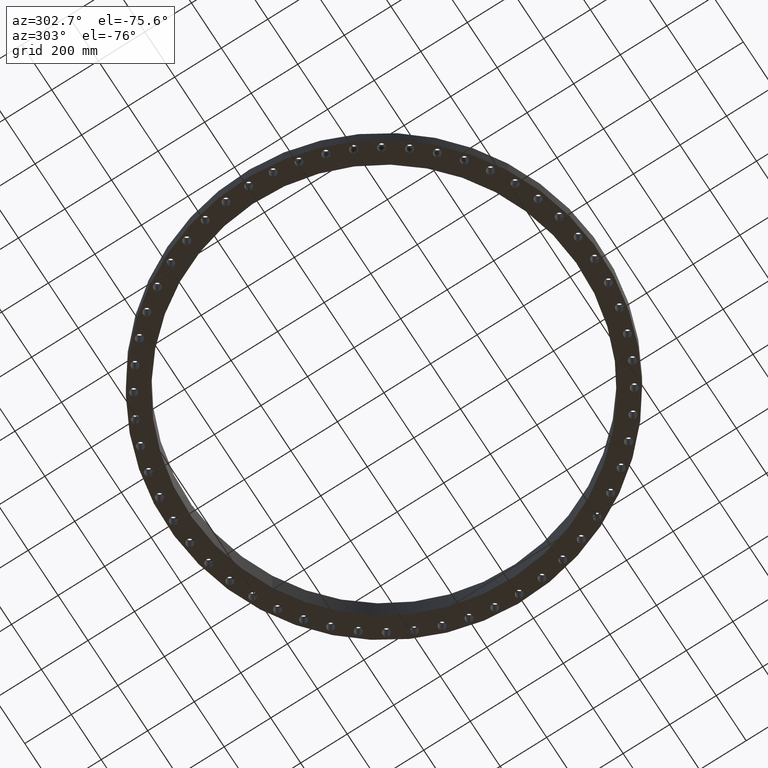
[diagram: clean part render]
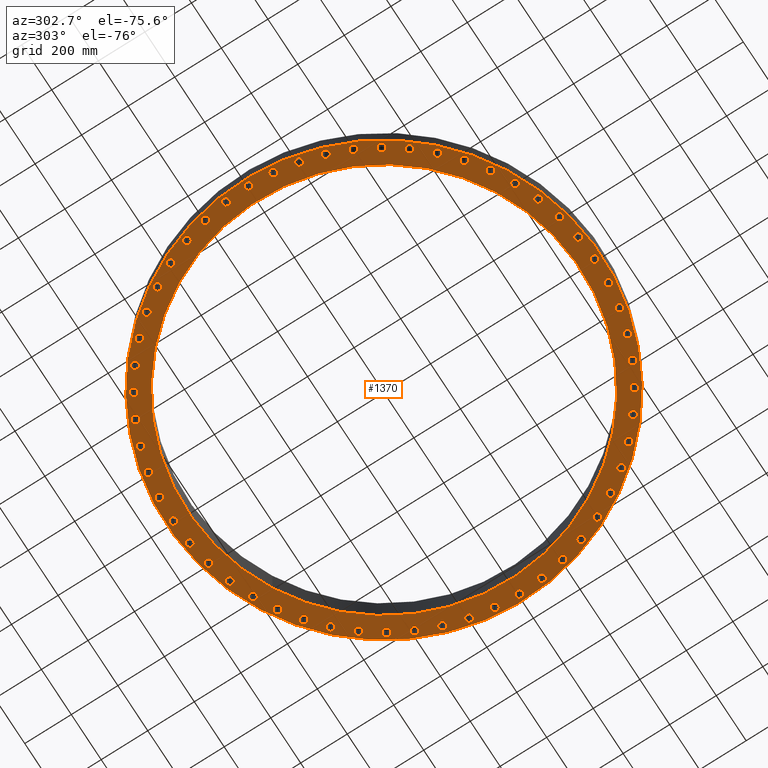
[diagram: same view with one face highlighted and labeled with its STEP entity id]
A machine part, auxiliary view. The second image highlights one B-rep face of the part: STEP entity #1370.
In plain terms, the highlighted planar face has unit normal (0, 0, -1).
Its self-contained STEP definition (entity closure, byte-faithful):
#51=AXIS2_PLACEMENT_3D('Circle Axis2P3D',#49,#50,$) ;
#77=AXIS2_PLACEMENT_3D('Circle Axis2P3D',#75,#76,$) ;
#99=AXIS2_PLACEMENT_3D('Circle Axis2P3D',#97,#98,$) ;
#134=AXIS2_PLACEMENT_3D('Circle Axis2P3D',#132,#133,$) ;
#334=AXIS2_PLACEMENT_3D('Circle Axis2P3D',#332,#333,$) ;
#353=AXIS2_PLACEMENT_3D('Circle Axis2P3D',#351,#352,$) ;
#366=AXIS2_PLACEMENT_3D('Plane Axis2P3D',#363,#364,#365) ;
#382=AXIS2_PLACEMENT_3D('Circle Axis2P3D',#380,#381,$) ;
#391=AXIS2_PLACEMENT_3D('Circle Axis2P3D',#389,#390,$) ;
#400=AXIS2_PLACEMENT_3D('Circle Axis2P3D',#398,#399,$) ;
#409=AXIS2_PLACEMENT_3D('Circle Axis2P3D',#407,#408,$) ;
#418=AXIS2_PLACEMENT_3D('Circle Axis2P3D',#416,#417,$) ;
#427=AXIS2_PLACEMENT_3D('Circle Axis2P3D',#425,#426,$) ;
#436=AXIS2_PLACEMENT_3D('Circle Axis2P3D',#434,#435,$) ;
#445=AXIS2_PLACEMENT_3D('Circle Axis2P3D',#443,#444,$) ;
#454=AXIS2_PLACEMENT_3D('Circle Axis2P3D',#452,#453,$) ;
#463=AXIS2_PLACEMENT_3D('Circle Axis2P3D',#461,#462,$) ;
#472=AXIS2_PLACEMENT_3D('Circle Axis2P3D',#470,#471,$) ;
#481=AXIS2_PLACEMENT_3D('Circle Axis2P3D',#479,#480,$) ;
#490=AXIS2_PLACEMENT_3D('Circle Axis2P3D',#488,#489,$) ;
#499=AXIS2_PLACEMENT_3D('Circle Axis2P3D',#497,#498,$) ;
#508=AXIS2_PLACEMENT_3D('Circle Axis2P3D',#506,#507,$) ;
#517=AXIS2_PLACEMENT_3D('Circle Axis2P3D',#515,#516,$) ;
#526=AXIS2_PLACEMENT_3D('Circle Axis2P3D',#524,#525,$) ;
#535=AXIS2_PLACEMENT_3D('Circle Axis2P3D',#533,#534,$) ;
#544=AXIS2_PLACEMENT_3D('Circle Axis2P3D',#542,#543,$) ;
#553=AXIS2_PLACEMENT_3D('Circle Axis2P3D',#551,#552,$) ;
#562=AXIS2_PLACEMENT_3D('Circle Axis2P3D',#560,#561,$) ;
#571=AXIS2_PLACEMENT_3D('Circle Axis2P3D',#569,#570,$) ;
#580=AXIS2_PLACEMENT_3D('Circle Axis2P3D',#578,#579,$) ;
#589=AXIS2_PLACEMENT_3D('Circle Axis2P3D',#587,#588,$) ;
#598=AXIS2_PLACEMENT_3D('Circle Axis2P3D',#596,#597,$) ;
#607=AXIS2_PLACEMENT_3D('Circle Axis2P3D',#605,#606,$) ;
#616=AXIS2_PLACEMENT_3D('Circle Axis2P3D',#614,#615,$) ;
#625=AXIS2_PLACEMENT_3D('Circle Axis2P3D',#623,#624,$) ;
#634=AXIS2_PLACEMENT_3D('Circle Axis2P3D',#632,#633,$) ;
#643=AXIS2_PLACEMENT_3D('Circle Axis2P3D',#641,#642,$) ;
#652=AXIS2_PLACEMENT_3D('Circle Axis2P3D',#650,#651,$) ;
#661=AXIS2_PLACEMENT_3D('Circle Axis2P3D',#659,#660,$) ;
#670=AXIS2_PLACEMENT_3D('Circle Axis2P3D',#668,#669,$) ;
#679=AXIS2_PLACEMENT_3D('Circle Axis2P3D',#677,#678,$) ;
#688=AXIS2_PLACEMENT_3D('Circle Axis2P3D',#686,#687,$) ;
#697=AXIS2_PLACEMENT_3D('Circle Axis2P3D',#695,#696,$) ;
#706=AXIS2_PLACEMENT_3D('Circle Axis2P3D',#704,#705,$) ;
#715=AXIS2_PLACEMENT_3D('Circle Axis2P3D',#713,#714,$) ;
#724=AXIS2_PLACEMENT_3D('Circle Axis2P3D',#722,#723,$) ;
#733=AXIS2_PLACEMENT_3D('Circle Axis2P3D',#731,#732,$) ;
#742=AXIS2_PLACEMENT_3D('Circle Axis2P3D',#740,#741,$) ;
#751=AXIS2_PLACEMENT_3D('Circle Axis2P3D',#749,#750,$) ;
#760=AXIS2_PLACEMENT_3D('Circle Axis2P3D',#758,#759,$) ;
#769=AXIS2_PLACEMENT_3D('Circle Axis2P3D',#767,#768,$) ;
#778=AXIS2_PLACEMENT_3D('Circle Axis2P3D',#776,#777,$) ;
#787=AXIS2_PLACEMENT_3D('Circle Axis2P3D',#785,#786,$) ;
#796=AXIS2_PLACEMENT_3D('Circle Axis2P3D',#794,#795,$) ;
#805=AXIS2_PLACEMENT_3D('Circle Axis2P3D',#803,#804,$) ;
#814=AXIS2_PLACEMENT_3D('Circle Axis2P3D',#812,#813,$) ;
#823=AXIS2_PLACEMENT_3D('Circle Axis2P3D',#821,#822,$) ;
#832=AXIS2_PLACEMENT_3D('Circle Axis2P3D',#830,#831,$) ;
#841=AXIS2_PLACEMENT_3D('Circle Axis2P3D',#839,#840,$) ;
#850=AXIS2_PLACEMENT_3D('Circle Axis2P3D',#848,#849,$) ;
#859=AXIS2_PLACEMENT_3D('Circle Axis2P3D',#857,#858,$) ;
#868=AXIS2_PLACEMENT_3D('Circle Axis2P3D',#866,#867,$) ;
#877=AXIS2_PLACEMENT_3D('Circle Axis2P3D',#875,#876,$) ;
#886=AXIS2_PLACEMENT_3D('Circle Axis2P3D',#884,#885,$) ;
#895=AXIS2_PLACEMENT_3D('Circle Axis2P3D',#893,#894,$) ;
#904=AXIS2_PLACEMENT_3D('Circle Axis2P3D',#902,#903,$) ;
#913=AXIS2_PLACEMENT_3D('Circle Axis2P3D',#911,#912,$) ;
#922=AXIS2_PLACEMENT_3D('Circle Axis2P3D',#920,#921,$) ;
#931=AXIS2_PLACEMENT_3D('Circle Axis2P3D',#929,#930,$) ;
#940=AXIS2_PLACEMENT_3D('Circle Axis2P3D',#938,#939,$) ;
#949=AXIS2_PLACEMENT_3D('Circle Axis2P3D',#947,#948,$) ;
#958=AXIS2_PLACEMENT_3D('Circle Axis2P3D',#956,#957,$) ;
#967=AXIS2_PLACEMENT_3D('Circle Axis2P3D',#965,#966,$) ;
#976=AXIS2_PLACEMENT_3D('Circle Axis2P3D',#974,#975,$) ;
#985=AXIS2_PLACEMENT_3D('Circle Axis2P3D',#983,#984,$) ;
#994=AXIS2_PLACEMENT_3D('Circle Axis2P3D',#992,#993,$) ;
#1003=AXIS2_PLACEMENT_3D('Circle Axis2P3D',#1001,#1002,$) ;
#1012=AXIS2_PLACEMENT_3D('Circle Axis2P3D',#1010,#1011,$) ;
#1021=AXIS2_PLACEMENT_3D('Circle Axis2P3D',#1019,#1020,$) ;
#1030=AXIS2_PLACEMENT_3D('Circle Axis2P3D',#1028,#1029,$) ;
#1039=AXIS2_PLACEMENT_3D('Circle Axis2P3D',#1037,#1038,$) ;
#1048=AXIS2_PLACEMENT_3D('Circle Axis2P3D',#1046,#1047,$) ;
#1057=AXIS2_PLACEMENT_3D('Circle Axis2P3D',#1055,#1056,$) ;
#1066=AXIS2_PLACEMENT_3D('Circle Axis2P3D',#1064,#1065,$) ;
#1075=AXIS2_PLACEMENT_3D('Circle Axis2P3D',#1073,#1074,$) ;
#1084=AXIS2_PLACEMENT_3D('Circle Axis2P3D',#1082,#1083,$) ;
#1093=AXIS2_PLACEMENT_3D('Circle Axis2P3D',#1091,#1092,$) ;
#1102=AXIS2_PLACEMENT_3D('Circle Axis2P3D',#1100,#1101,$) ;
#1111=AXIS2_PLACEMENT_3D('Circle Axis2P3D',#1109,#1110,$) ;
#1120=AXIS2_PLACEMENT_3D('Circle Axis2P3D',#1118,#1119,$) ;
#1129=AXIS2_PLACEMENT_3D('Circle Axis2P3D',#1127,#1128,$) ;
#1138=AXIS2_PLACEMENT_3D('Circle Axis2P3D',#1136,#1137,$) ;
#1147=AXIS2_PLACEMENT_3D('Circle Axis2P3D',#1145,#1146,$) ;
#1156=AXIS2_PLACEMENT_3D('Circle Axis2P3D',#1154,#1155,$) ;
#1165=AXIS2_PLACEMENT_3D('Circle Axis2P3D',#1163,#1164,$) ;
#1174=AXIS2_PLACEMENT_3D('Circle Axis2P3D',#1172,#1173,$) ;
#1183=AXIS2_PLACEMENT_3D('Circle Axis2P3D',#1181,#1182,$) ;
#1192=AXIS2_PLACEMENT_3D('Circle Axis2P3D',#1190,#1191,$) ;
#1201=AXIS2_PLACEMENT_3D('Circle Axis2P3D',#1199,#1200,$) ;
#1210=AXIS2_PLACEMENT_3D('Circle Axis2P3D',#1208,#1209,$) ;
#1219=AXIS2_PLACEMENT_3D('Circle Axis2P3D',#1217,#1218,$) ;
#1228=AXIS2_PLACEMENT_3D('Circle Axis2P3D',#1226,#1227,$) ;
#1237=AXIS2_PLACEMENT_3D('Circle Axis2P3D',#1235,#1236,$) ;
#1246=AXIS2_PLACEMENT_3D('Circle Axis2P3D',#1244,#1245,$) ;
#1255=AXIS2_PLACEMENT_3D('Circle Axis2P3D',#1253,#1254,$) ;
#1264=AXIS2_PLACEMENT_3D('Circle Axis2P3D',#1262,#1263,$) ;
#1273=AXIS2_PLACEMENT_3D('Circle Axis2P3D',#1271,#1272,$) ;
#1282=AXIS2_PLACEMENT_3D('Circle Axis2P3D',#1280,#1281,$) ;
#1291=AXIS2_PLACEMENT_3D('Circle Axis2P3D',#1289,#1290,$) ;
#1300=AXIS2_PLACEMENT_3D('Circle Axis2P3D',#1298,#1299,$) ;
#1309=AXIS2_PLACEMENT_3D('Circle Axis2P3D',#1307,#1308,$) ;
#1318=AXIS2_PLACEMENT_3D('Circle Axis2P3D',#1316,#1317,$) ;
#1327=AXIS2_PLACEMENT_3D('Circle Axis2P3D',#1325,#1326,$) ;
#1336=AXIS2_PLACEMENT_3D('Circle Axis2P3D',#1334,#1335,$) ;
#1345=AXIS2_PLACEMENT_3D('Circle Axis2P3D',#1343,#1344,$) ;
#1354=AXIS2_PLACEMENT_3D('Circle Axis2P3D',#1352,#1353,$) ;
#1363=AXIS2_PLACEMENT_3D('Circle Axis2P3D',#1361,#1362,$) ;
#44=CARTESIAN_POINT('Vertex',(35.076510899,0.299640961629,0.)) ;
#49=CARTESIAN_POINT('Axis2P3D Location',(35.6250000001,0.,0.)) ;
#53=CARTESIAN_POINT('Vertex',(36.1734891013,-0.299640961629,0.)) ;
#75=CARTESIAN_POINT('Axis2P3D Location',(35.6250000001,0.,0.)) ;
#97=CARTESIAN_POINT('Axis2P3D Location',(0.,0.,4.47585975282E-015)) ;
#101=CARTESIAN_POINT('Vertex',(-17.6188885438,-32.2511591496,4.47585975282E-015)) ;
#103=CARTESIAN_POINT('Vertex',(17.6188885438,32.2511591496,4.47585975282E-015)) ;
#132=CARTESIAN_POINT('Axis2P3D Location',(0.,0.,4.47585975282E-015)) ;
#329=CARTESIAN_POINT('Vertex',(-15.8809709663,-29.0699223627,-4.02827377754E-014)) ;
#332=CARTESIAN_POINT('Axis2P3D Location',(0.,0.,-4.14017027136E-014)) ;
#336=CARTESIAN_POINT('Vertex',(15.8809709663,29.0699223627,-4.02827377754E-014)) ;
#351=CARTESIAN_POINT('Axis2P3D Location',(0.,0.,-4.14017027136E-014)) ;
#363=CARTESIAN_POINT('Axis2P3D Location',(0.,33.1250000001,0.)) ;
#380=CARTESIAN_POINT('Axis2P3D Location',(35.4009974776,-3.9887344612,0.)) ;
#384=CARTESIAN_POINT('Vertex',(34.889506304,-3.62956628418,0.)) ;
#386=CARTESIAN_POINT('Vertex',(35.9124886511,-4.34790263821,0.)) ;
#389=CARTESIAN_POINT('Axis2P3D Location',(35.4009974776,-3.9887344612,0.)) ;
#398=CARTESIAN_POINT('Axis2P3D Location',(34.7318068716,-7.92730827223,0.)) ;
#402=CARTESIAN_POINT('Vertex',(34.263745924,-7.51312962804,0.)) ;
#404=CARTESIAN_POINT('Vertex',(35.1998678193,-8.34148691641,0.)) ;
#407=CARTESIAN_POINT('Axis2P3D Location',(34.7318068716,-7.92730827223,0.)) ;
#416=CARTESIAN_POINT('Axis2P3D Location',(33.6258436424,-11.7661915822,0.)) ;
#420=CARTESIAN_POINT('Vertex',(33.2070990586,-11.3022110076,0.)) ;
#422=CARTESIAN_POINT('Vertex',(34.0445882261,-12.2301721568,0.)) ;
#425=CARTESIAN_POINT('Axis2P3D Location',(33.6258436424,-11.7661915822,0.)) ;
#434=CARTESIAN_POINT('Axis2P3D Location',(32.0970159192,-15.4571082061,0.)) ;
#438=CARTESIAN_POINT('Vertex',(31.7328536554,-14.9491605261,0.)) ;
#440=CARTESIAN_POINT('Vertex',(32.4611781829,-15.9650558862,0.)) ;
#443=CARTESIAN_POINT('Axis2P3D Location',(32.0970159192,-15.4571082061,0.)) ;
#452=CARTESIAN_POINT('Axis2P3D Location',(30.1645495976,-18.9536427259,0.)) ;
#456=CARTESIAN_POINT('Vertex',(29.8595492057,-18.4081156772,0.)) ;
#458=CARTESIAN_POINT('Vertex',(30.4695499896,-19.4991697747,0.)) ;
#461=CARTESIAN_POINT('Axis2P3D Location',(30.1645495976,-18.9536427259,0.)) ;
#470=CARTESIAN_POINT('Axis2P3D Location',(27.852746563,-22.2118241913,0.)) ;
#474=CARTESIAN_POINT('Vertex',(27.6107435997,-21.635578093,0.)) ;
#476=CARTESIAN_POINT('Vertex',(28.0947495263,-22.7880702896,-3.35689481461E-015)) ;
#479=CARTESIAN_POINT('Axis2P3D Location',(27.852746563,-22.2118241913,0.)) ;
#488=CARTESIAN_POINT('Axis2P3D Location',(25.1906790799,-25.1906790799,0.)) ;
#492=CARTESIAN_POINT('Vertex',(25.0147168729,-24.5909605611,0.)) ;
#494=CARTESIAN_POINT('Vertex',(25.3666412868,-25.7903975986,0.)) ;
#497=CARTESIAN_POINT('Axis2P3D Location',(25.1906790799,-25.1906790799,0.)) ;
#506=CARTESIAN_POINT('Axis2P3D Location',(22.2118241913,-27.852746563,0.)) ;
#510=CARTESIAN_POINT('Vertex',(22.1041155675,-27.2370974321,0.)) ;
#512=CARTESIAN_POINT('Vertex',(22.3195328151,-28.4683956939,0.)) ;
#515=CARTESIAN_POINT('Axis2P3D Location',(22.2118241913,-27.852746563,0.)) ;
#524=CARTESIAN_POINT('Axis2P3D Location',(18.9536427259,-30.1645495976,0.)) ;
#528=CARTESIAN_POINT('Vertex',(18.9155421838,-29.5407119996,0.)) ;
#530=CARTESIAN_POINT('Vertex',(18.9917432681,-30.7883871956,0.)) ;
#533=CARTESIAN_POINT('Axis2P3D Location',(18.9536427259,-30.1645495976,0.)) ;
#542=CARTESIAN_POINT('Axis2P3D Location',(15.4571082061,-32.0970159192,0.)) ;
#546=CARTESIAN_POINT('Vertex',(15.489094882,-31.4728349738,0.)) ;
#548=CARTESIAN_POINT('Vertex',(15.4251215302,-32.7211968645,0.)) ;
#551=CARTESIAN_POINT('Axis2P3D Location',(15.4571082061,-32.0970159192,0.)) ;
#560=CARTESIAN_POINT('Axis2P3D Location',(11.7661915822,-33.6258436424,0.)) ;
#564=CARTESIAN_POINT('Vertex',(11.8678632251,-33.0091687872,0.)) ;
#566=CARTESIAN_POINT('Vertex',(11.6645199393,-34.2425184976,0.)) ;
#569=CARTESIAN_POINT('Axis2P3D Location',(11.7661915822,-33.6258436424,0.)) ;
#578=CARTESIAN_POINT('Axis2P3D Location',(7.92730827223,-34.7318068716,0.)) ;
#582=CARTESIAN_POINT('Vertex',(8.09738630229,-34.1303931507,0.)) ;
#584=CARTESIAN_POINT('Vertex',(7.75723024216,-35.3332205925,0.)) ;
#587=CARTESIAN_POINT('Axis2P3D Location',(7.92730827223,-34.7318068716,0.)) ;
#596=CARTESIAN_POINT('Axis2P3D Location',(3.9887344612,-35.4009974776,0.)) ;
#600=CARTESIAN_POINT('Vertex',(4.22508004849,-34.8224080175,0.)) ;
#602=CARTESIAN_POINT('Vertex',(3.7523888739,-35.9795869377,0.)) ;
#605=CARTESIAN_POINT('Axis2P3D Location',(3.9887344612,-35.4009974776,0.)) ;
#614=CARTESIAN_POINT('Axis2P3D Location',(5.45495407375E-015,-35.6250000001,0.)) ;
#618=CARTESIAN_POINT('Vertex',(0.299640961629,-35.076510899,0.)) ;
#620=CARTESIAN_POINT('Vertex',(-0.299640961629,-36.1734891013,0.)) ;
#623=CARTESIAN_POINT('Axis2P3D Location',(6.08437185149E-015,-35.6250000001,0.)) ;
#632=CARTESIAN_POINT('Axis2P3D Location',(-3.9887344612,-35.4009974776,0.)) ;
#636=CARTESIAN_POINT('Vertex',(-3.62956628418,-34.889506304,0.)) ;
#638=CARTESIAN_POINT('Vertex',(-4.34790263821,-35.9124886511,0.)) ;
#641=CARTESIAN_POINT('Axis2P3D Location',(-3.9887344612,-35.4009974776,0.)) ;
#650=CARTESIAN_POINT('Axis2P3D Location',(-7.92730827223,-34.7318068716,0.)) ;
#654=CARTESIAN_POINT('Vertex',(-7.51312962804,-34.263745924,0.)) ;
#656=CARTESIAN_POINT('Vertex',(-8.34148691641,-35.1998678193,-3.35689481461E-015)) ;
#659=CARTESIAN_POINT('Axis2P3D Location',(-7.92730827223,-34.7318068716,0.)) ;
#668=CARTESIAN_POINT('Axis2P3D Location',(-11.7661915822,-33.6258436424,0.)) ;
#672=CARTESIAN_POINT('Vertex',(-11.3022110076,-33.2070990586,0.)) ;
#674=CARTESIAN_POINT('Vertex',(-12.2301721568,-34.0445882261,0.)) ;
#677=CARTESIAN_POINT('Axis2P3D Location',(-11.7661915822,-33.6258436424,0.)) ;
#686=CARTESIAN_POINT('Axis2P3D Location',(-15.4571082061,-32.0970159192,0.)) ;
#690=CARTESIAN_POINT('Vertex',(-14.9491605261,-31.7328536554,0.)) ;
#692=CARTESIAN_POINT('Vertex',(-15.9650558862,-32.4611781829,0.)) ;
#695=CARTESIAN_POINT('Axis2P3D Location',(-15.4571082061,-32.0970159192,0.)) ;
#704=CARTESIAN_POINT('Axis2P3D Location',(-18.9536427259,-30.1645495976,0.)) ;
#708=CARTESIAN_POINT('Vertex',(-18.4081156772,-29.8595492057,0.)) ;
#710=CARTESIAN_POINT('Vertex',(-19.4991697747,-30.4695499896,0.)) ;
#713=CARTESIAN_POINT('Axis2P3D Location',(-18.9536427259,-30.1645495976,0.)) ;
#722=CARTESIAN_POINT('Axis2P3D Location',(-22.2118241913,-27.852746563,0.)) ;
#726=CARTESIAN_POINT('Vertex',(-21.635578093,-27.6107435997,0.)) ;
#728=CARTESIAN_POINT('Vertex',(-22.7880702896,-28.0947495263,0.)) ;
#731=CARTESIAN_POINT('Axis2P3D Location',(-22.2118241913,-27.852746563,0.)) ;
#740=CARTESIAN_POINT('Axis2P3D Location',(-25.1906790799,-25.1906790799,0.)) ;
#744=CARTESIAN_POINT('Vertex',(-24.5909605611,-25.0147168729,0.)) ;
#746=CARTESIAN_POINT('Vertex',(-25.7903975986,-25.3666412868,0.)) ;
#749=CARTESIAN_POINT('Axis2P3D Location',(-25.1906790799,-25.1906790799,0.)) ;
#758=CARTESIAN_POINT('Axis2P3D Location',(-27.852746563,-22.2118241913,0.)) ;
#762=CARTESIAN_POINT('Vertex',(-27.2370974321,-22.1041155675,0.)) ;
#764=CARTESIAN_POINT('Vertex',(-28.4683956939,-22.3195328151,0.)) ;
#767=CARTESIAN_POINT('Axis2P3D Location',(-27.852746563,-22.2118241913,0.)) ;
#776=CARTESIAN_POINT('Axis2P3D Location',(-30.1645495976,-18.9536427259,0.)) ;
#780=CARTESIAN_POINT('Vertex',(-29.5407119996,-18.9155421838,0.)) ;
#782=CARTESIAN_POINT('Vertex',(-30.7883871956,-18.9917432681,0.)) ;
#785=CARTESIAN_POINT('Axis2P3D Location',(-30.1645495976,-18.9536427259,0.)) ;
#794=CARTESIAN_POINT('Axis2P3D Location',(-32.0970159192,-15.4571082061,0.)) ;
#798=CARTESIAN_POINT('Vertex',(-31.4728349738,-15.489094882,0.)) ;
#800=CARTESIAN_POINT('Vertex',(-32.7211968645,-15.4251215302,-3.35689481461E-015)) ;
#803=CARTESIAN_POINT('Axis2P3D Location',(-32.0970159192,-15.4571082061,0.)) ;
#812=CARTESIAN_POINT('Axis2P3D Location',(-33.6258436424,-11.7661915822,0.)) ;
#816=CARTESIAN_POINT('Vertex',(-33.0091687872,-11.8678632251,0.)) ;
#818=CARTESIAN_POINT('Vertex',(-34.2425184976,-11.6645199393,0.)) ;
#821=CARTESIAN_POINT('Axis2P3D Location',(-33.6258436424,-11.7661915822,0.)) ;
#830=CARTESIAN_POINT('Axis2P3D Location',(-34.7318068716,-7.92730827223,0.)) ;
#834=CARTESIAN_POINT('Vertex',(-34.1303931507,-8.09738630229,0.)) ;
#836=CARTESIAN_POINT('Vertex',(-35.3332205925,-7.75723024216,0.)) ;
#839=CARTESIAN_POINT('Axis2P3D Location',(-34.7318068716,-7.92730827223,0.)) ;
#848=CARTESIAN_POINT('Axis2P3D Location',(-35.4009974776,-3.9887344612,0.)) ;
#852=CARTESIAN_POINT('Vertex',(-34.8224080175,-4.22508004849,0.)) ;
#854=CARTESIAN_POINT('Vertex',(-35.9795869377,-3.7523888739,0.)) ;
#857=CARTESIAN_POINT('Axis2P3D Location',(-35.4009974776,-3.9887344612,0.)) ;
#866=CARTESIAN_POINT('Axis2P3D Location',(-35.6250000001,-1.79034390113E-014,0.)) ;
#870=CARTESIAN_POINT('Vertex',(-35.076510899,-0.299640961629,0.)) ;
#872=CARTESIAN_POINT('Vertex',(-36.1734891013,0.299640961629,0.)) ;
#875=CARTESIAN_POINT('Axis2P3D Location',(-35.6250000001,-1.79034390113E-014,0.)) ;
#884=CARTESIAN_POINT('Axis2P3D Location',(-35.4009974776,3.9887344612,0.)) ;
#888=CARTESIAN_POINT('Vertex',(-34.889506304,3.62956628418,0.)) ;
#890=CARTESIAN_POINT('Vertex',(-35.9124886511,4.34790263821,0.)) ;
#893=CARTESIAN_POINT('Axis2P3D Location',(-35.4009974776,3.9887344612,0.)) ;
#902=CARTESIAN_POINT('Axis2P3D Location',(-34.7318068716,7.92730827223,0.)) ;
#906=CARTESIAN_POINT('Vertex',(-34.263745924,7.51312962804,0.)) ;
#908=CARTESIAN_POINT('Vertex',(-35.1998678193,8.34148691641,0.)) ;
#911=CARTESIAN_POINT('Axis2P3D Location',(-34.7318068716,7.92730827223,0.)) ;
#920=CARTESIAN_POINT('Axis2P3D Location',(-33.6258436424,11.7661915822,0.)) ;
#924=CARTESIAN_POINT('Vertex',(-33.2070990586,11.3022110076,0.)) ;
#926=CARTESIAN_POINT('Vertex',(-34.0445882261,12.2301721568,0.)) ;
#929=CARTESIAN_POINT('Axis2P3D Location',(-33.6258436424,11.7661915822,0.)) ;
#938=CARTESIAN_POINT('Axis2P3D Location',(-32.0970159192,15.4571082061,0.)) ;
#942=CARTESIAN_POINT('Vertex',(-31.7328536554,14.9491605261,0.)) ;
#944=CARTESIAN_POINT('Vertex',(-32.4611781829,15.9650558862,0.)) ;
#947=CARTESIAN_POINT('Axis2P3D Location',(-32.0970159192,15.4571082061,0.)) ;
#956=CARTESIAN_POINT('Axis2P3D Location',(-30.1645495976,18.9536427259,0.)) ;
#960=CARTESIAN_POINT('Vertex',(-29.8595492057,18.4081156772,0.)) ;
#962=CARTESIAN_POINT('Vertex',(-30.4695499896,19.4991697747,0.)) ;
#965=CARTESIAN_POINT('Axis2P3D Location',(-30.1645495976,18.9536427259,0.)) ;
#974=CARTESIAN_POINT('Axis2P3D Location',(-27.852746563,22.2118241913,0.)) ;
#978=CARTESIAN_POINT('Vertex',(-27.6107435997,21.635578093,0.)) ;
#980=CARTESIAN_POINT('Vertex',(-28.0947495263,22.7880702896,0.)) ;
#983=CARTESIAN_POINT('Axis2P3D Location',(-27.852746563,22.2118241913,0.)) ;
#992=CARTESIAN_POINT('Axis2P3D Location',(-25.1906790799,25.1906790799,0.)) ;
#996=CARTESIAN_POINT('Vertex',(-25.0147168729,24.5909605611,0.)) ;
#998=CARTESIAN_POINT('Vertex',(-25.3666412868,25.7903975986,0.)) ;
#1001=CARTESIAN_POINT('Axis2P3D Location',(-25.1906790799,25.1906790799,0.)) ;
#1010=CARTESIAN_POINT('Axis2P3D Location',(-22.2118241913,27.852746563,0.)) ;
#1014=CARTESIAN_POINT('Vertex',(-22.1041155675,27.2370974321,0.)) ;
#1016=CARTESIAN_POINT('Vertex',(-22.3195328151,28.4683956939,0.)) ;
#1019=CARTESIAN_POINT('Axis2P3D Location',(-22.2118241913,27.852746563,0.)) ;
#1028=CARTESIAN_POINT('Axis2P3D Location',(-18.9536427259,30.1645495976,0.)) ;
#1032=CARTESIAN_POINT('Vertex',(-18.9155421838,29.5407119996,0.)) ;
#1034=CARTESIAN_POINT('Vertex',(-18.9917432681,30.7883871956,0.)) ;
#1037=CARTESIAN_POINT('Axis2P3D Location',(-18.9536427259,30.1645495976,0.)) ;
#1046=CARTESIAN_POINT('Axis2P3D Location',(-15.4571082061,32.0970159192,0.)) ;
#1050=CARTESIAN_POINT('Vertex',(-15.489094882,31.4728349738,0.)) ;
#1052=CARTESIAN_POINT('Vertex',(-15.4251215302,32.7211968645,0.)) ;
#1055=CARTESIAN_POINT('Axis2P3D Location',(-15.4571082061,32.0970159192,0.)) ;
#1064=CARTESIAN_POINT('Axis2P3D Location',(-11.7661915822,33.6258436424,0.)) ;
#1068=CARTESIAN_POINT('Vertex',(-11.8678632251,33.0091687872,0.)) ;
#1070=CARTESIAN_POINT('Vertex',(-11.6645199393,34.2425184976,0.)) ;
#1073=CARTESIAN_POINT('Axis2P3D Location',(-11.7661915822,33.6258436424,0.)) ;
#1082=CARTESIAN_POINT('Axis2P3D Location',(-7.92730827223,34.7318068716,0.)) ;
#1086=CARTESIAN_POINT('Vertex',(-8.09738630229,34.1303931507,0.)) ;
#1088=CARTESIAN_POINT('Vertex',(-7.75723024216,35.3332205925,0.)) ;
#1091=CARTESIAN_POINT('Axis2P3D Location',(-7.92730827223,34.7318068716,0.)) ;
#1100=CARTESIAN_POINT('Axis2P3D Location',(-3.9887344612,35.4009974776,0.)) ;
#1104=CARTESIAN_POINT('Vertex',(-4.22508004849,34.8224080175,0.)) ;
#1106=CARTESIAN_POINT('Vertex',(-3.7523888739,35.9795869377,0.)) ;
#1109=CARTESIAN_POINT('Axis2P3D Location',(-3.9887344612,35.4009974776,0.)) ;
#1118=CARTESIAN_POINT('Axis2P3D Location',(-1.60851209867E-015,35.6250000001,0.)) ;
#1122=CARTESIAN_POINT('Vertex',(-0.299640961629,35.076510899,0.)) ;
#1124=CARTESIAN_POINT('Vertex',(0.299640961629,36.1734891013,0.)) ;
#1127=CARTESIAN_POINT('Axis2P3D Location',(-2.5876064196E-015,35.6250000001,0.)) ;
#1136=CARTESIAN_POINT('Axis2P3D Location',(3.9887344612,35.4009974776,0.)) ;
#1140=CARTESIAN_POINT('Vertex',(3.62956628418,34.889506304,0.)) ;
#1142=CARTESIAN_POINT('Vertex',(4.34790263821,35.9124886511,0.)) ;
#1145=CARTESIAN_POINT('Axis2P3D Location',(3.9887344612,35.4009974776,0.)) ;
#1154=CARTESIAN_POINT('Axis2P3D Location',(7.92730827223,34.7318068716,0.)) ;
#1158=CARTESIAN_POINT('Vertex',(7.51312962804,34.263745924,0.)) ;
#1160=CARTESIAN_POINT('Vertex',(8.34148691641,35.1998678193,0.)) ;
#1163=CARTESIAN_POINT('Axis2P3D Location',(7.92730827223,34.7318068716,0.)) ;
#1172=CARTESIAN_POINT('Axis2P3D Location',(11.7661915822,33.6258436424,0.)) ;
#1176=CARTESIAN_POINT('Vertex',(11.3022110076,33.2070990586,0.)) ;
#1178=CARTESIAN_POINT('Vertex',(12.2301721568,34.0445882261,-2.23792987641E-015)) ;
#1181=CARTESIAN_POINT('Axis2P3D Location',(11.7661915822,33.6258436424,0.)) ;
#1190=CARTESIAN_POINT('Axis2P3D Location',(15.4571082061,32.0970159192,0.)) ;
#1194=CARTESIAN_POINT('Vertex',(14.9491605261,31.7328536554,0.)) ;
#1196=CARTESIAN_POINT('Vertex',(15.9650558862,32.4611781829,0.)) ;
#1199=CARTESIAN_POINT('Axis2P3D Location',(15.4571082061,32.0970159192,0.)) ;
#1208=CARTESIAN_POINT('Axis2P3D Location',(18.9536427259,30.1645495976,0.)) ;
#1212=CARTESIAN_POINT('Vertex',(18.4081156772,29.8595492057,0.)) ;
#1214=CARTESIAN_POINT('Vertex',(19.4991697747,30.4695499896,-2.23792987641E-015)) ;
#1217=CARTESIAN_POINT('Axis2P3D Location',(18.9536427259,30.1645495976,0.)) ;
#1226=CARTESIAN_POINT('Axis2P3D Location',(22.2118241913,27.852746563,0.)) ;
#1230=CARTESIAN_POINT('Vertex',(21.635578093,27.6107435997,0.)) ;
#1232=CARTESIAN_POINT('Vertex',(22.7880702896,28.0947495263,0.)) ;
#1235=CARTESIAN_POINT('Axis2P3D Location',(22.2118241913,27.852746563,0.)) ;
#1244=CARTESIAN_POINT('Axis2P3D Location',(25.1906790799,25.1906790799,0.)) ;
#1248=CARTESIAN_POINT('Vertex',(24.5909605611,25.0147168729,0.)) ;
#1250=CARTESIAN_POINT('Vertex',(25.7903975986,25.3666412868,-2.23792987641E-015)) ;
#1253=CARTESIAN_POINT('Axis2P3D Location',(25.1906790799,25.1906790799,0.)) ;
#1262=CARTESIAN_POINT('Axis2P3D Location',(27.852746563,22.2118241913,0.)) ;
#1266=CARTESIAN_POINT('Vertex',(27.2370974321,22.1041155675,0.)) ;
#1268=CARTESIAN_POINT('Vertex',(28.4683956939,22.3195328151,0.)) ;
#1271=CARTESIAN_POINT('Axis2P3D Location',(27.852746563,22.2118241913,0.)) ;
#1280=CARTESIAN_POINT('Axis2P3D Location',(30.1645495976,18.9536427259,0.)) ;
#1284=CARTESIAN_POINT('Vertex',(29.5407119996,18.9155421838,0.)) ;
#1286=CARTESIAN_POINT('Vertex',(30.7883871956,18.9917432681,0.)) ;
#1289=CARTESIAN_POINT('Axis2P3D Location',(30.1645495976,18.9536427259,0.)) ;
#1298=CARTESIAN_POINT('Axis2P3D Location',(32.0970159192,15.4571082061,0.)) ;
#1302=CARTESIAN_POINT('Vertex',(31.4728349738,15.489094882,0.)) ;
#1304=CARTESIAN_POINT('Vertex',(32.7211968645,15.4251215302,0.)) ;
#1307=CARTESIAN_POINT('Axis2P3D Location',(32.0970159192,15.4571082061,0.)) ;
#1316=CARTESIAN_POINT('Axis2P3D Location',(33.6258436424,11.7661915822,0.)) ;
#1320=CARTESIAN_POINT('Vertex',(33.0091687872,11.8678632251,0.)) ;
#1322=CARTESIAN_POINT('Vertex',(34.2425184976,11.6645199393,0.)) ;
#1325=CARTESIAN_POINT('Axis2P3D Location',(33.6258436424,11.7661915822,0.)) ;
#1334=CARTESIAN_POINT('Axis2P3D Location',(34.7318068716,7.92730827223,0.)) ;
#1338=CARTESIAN_POINT('Vertex',(34.1303931507,8.09738630229,0.)) ;
#1340=CARTESIAN_POINT('Vertex',(35.3332205925,7.75723024216,0.)) ;
#1343=CARTESIAN_POINT('Axis2P3D Location',(34.7318068716,7.92730827223,0.)) ;
#1352=CARTESIAN_POINT('Axis2P3D Location',(35.4009974776,3.9887344612,0.)) ;
#1356=CARTESIAN_POINT('Vertex',(34.8224080175,4.22508004849,0.)) ;
#1358=CARTESIAN_POINT('Vertex',(35.9795869377,3.7523888739,-2.23792987641E-015)) ;
#1361=CARTESIAN_POINT('Axis2P3D Location',(35.4009974776,3.9887344612,0.)) ;
#50=DIRECTION('Axis2P3D Direction',(0.,-0.,-0.0393700787402)) ;
#76=DIRECTION('Axis2P3D Direction',(0.,-0.,-0.0393700787402)) ;
#98=DIRECTION('Axis2P3D Direction',(0.,0.,-0.0393700787402)) ;
#133=DIRECTION('Axis2P3D Direction',(0.,0.,-0.0393700787402)) ;
#333=DIRECTION('Axis2P3D Direction',(0.,0.,-0.0393700787402)) ;
#352=DIRECTION('Axis2P3D Direction',(0.,0.,-0.0393700787402)) ;
#364=DIRECTION('Axis2P3D Direction',(0.,0.,-0.0393700787402)) ;
#365=DIRECTION('Axis2P3D XDirection',(0.0393700787402,0.,0.)) ;
#381=DIRECTION('Axis2P3D Direction',(0.,0.,-0.0393700787402)) ;
#390=DIRECTION('Axis2P3D Direction',(0.,0.,-0.0393700787402)) ;
#399=DIRECTION('Axis2P3D Direction',(0.,0.,-0.0393700787402)) ;
#408=DIRECTION('Axis2P3D Direction',(0.,0.,-0.0393700787402)) ;
#417=DIRECTION('Axis2P3D Direction',(0.,0.,-0.0393700787402)) ;
#426=DIRECTION('Axis2P3D Direction',(0.,0.,-0.0393700787402)) ;
#435=DIRECTION('Axis2P3D Direction',(0.,0.,-0.0393700787402)) ;
#444=DIRECTION('Axis2P3D Direction',(0.,0.,-0.0393700787402)) ;
#453=DIRECTION('Axis2P3D Direction',(0.,0.,-0.0393700787402)) ;
#462=DIRECTION('Axis2P3D Direction',(0.,0.,-0.0393700787402)) ;
#471=DIRECTION('Axis2P3D Direction',(0.,0.,-0.0393700787402)) ;
#480=DIRECTION('Axis2P3D Direction',(0.,0.,-0.0393700787402)) ;
#489=DIRECTION('Axis2P3D Direction',(0.,0.,-0.0393700787402)) ;
#498=DIRECTION('Axis2P3D Direction',(0.,0.,-0.0393700787402)) ;
#507=DIRECTION('Axis2P3D Direction',(0.,0.,-0.0393700787402)) ;
#516=DIRECTION('Axis2P3D Direction',(0.,0.,-0.0393700787402)) ;
#525=DIRECTION('Axis2P3D Direction',(0.,0.,-0.0393700787402)) ;
#534=DIRECTION('Axis2P3D Direction',(0.,0.,-0.0393700787402)) ;
#543=DIRECTION('Axis2P3D Direction',(0.,0.,-0.0393700787402)) ;
#552=DIRECTION('Axis2P3D Direction',(0.,0.,-0.0393700787402)) ;
#561=DIRECTION('Axis2P3D Direction',(0.,0.,-0.0393700787402)) ;
#570=DIRECTION('Axis2P3D Direction',(0.,0.,-0.0393700787402)) ;
#579=DIRECTION('Axis2P3D Direction',(0.,0.,-0.0393700787402)) ;
#588=DIRECTION('Axis2P3D Direction',(0.,0.,-0.0393700787402)) ;
#597=DIRECTION('Axis2P3D Direction',(0.,0.,-0.0393700787402)) ;
#606=DIRECTION('Axis2P3D Direction',(0.,0.,-0.0393700787402)) ;
#615=DIRECTION('Axis2P3D Direction',(0.,0.,-0.0393700787402)) ;
#624=DIRECTION('Axis2P3D Direction',(0.,0.,-0.0393700787402)) ;
#633=DIRECTION('Axis2P3D Direction',(0.,0.,-0.0393700787402)) ;
#642=DIRECTION('Axis2P3D Direction',(0.,0.,-0.0393700787402)) ;
#651=DIRECTION('Axis2P3D Direction',(0.,0.,-0.0393700787402)) ;
#660=DIRECTION('Axis2P3D Direction',(0.,0.,-0.0393700787402)) ;
#669=DIRECTION('Axis2P3D Direction',(0.,0.,-0.0393700787402)) ;
#678=DIRECTION('Axis2P3D Direction',(0.,0.,-0.0393700787402)) ;
#687=DIRECTION('Axis2P3D Direction',(0.,0.,-0.0393700787402)) ;
#696=DIRECTION('Axis2P3D Direction',(0.,0.,-0.0393700787402)) ;
#705=DIRECTION('Axis2P3D Direction',(0.,0.,-0.0393700787402)) ;
#714=DIRECTION('Axis2P3D Direction',(0.,0.,-0.0393700787402)) ;
#723=DIRECTION('Axis2P3D Direction',(0.,0.,-0.0393700787402)) ;
#732=DIRECTION('Axis2P3D Direction',(0.,0.,-0.0393700787402)) ;
#741=DIRECTION('Axis2P3D Direction',(0.,0.,-0.0393700787402)) ;
#750=DIRECTION('Axis2P3D Direction',(0.,0.,-0.0393700787402)) ;
#759=DIRECTION('Axis2P3D Direction',(0.,0.,-0.0393700787402)) ;
#768=DIRECTION('Axis2P3D Direction',(0.,0.,-0.0393700787402)) ;
#777=DIRECTION('Axis2P3D Direction',(0.,0.,-0.0393700787402)) ;
#786=DIRECTION('Axis2P3D Direction',(0.,0.,-0.0393700787402)) ;
#795=DIRECTION('Axis2P3D Direction',(0.,0.,-0.0393700787402)) ;
#804=DIRECTION('Axis2P3D Direction',(0.,0.,-0.0393700787402)) ;
#813=DIRECTION('Axis2P3D Direction',(0.,0.,-0.0393700787402)) ;
#822=DIRECTION('Axis2P3D Direction',(0.,0.,-0.0393700787402)) ;
#831=DIRECTION('Axis2P3D Direction',(0.,0.,-0.0393700787402)) ;
#840=DIRECTION('Axis2P3D Direction',(0.,0.,-0.0393700787402)) ;
#849=DIRECTION('Axis2P3D Direction',(0.,0.,-0.0393700787402)) ;
#858=DIRECTION('Axis2P3D Direction',(0.,0.,-0.0393700787402)) ;
#867=DIRECTION('Axis2P3D Direction',(0.,0.,-0.0393700787402)) ;
#876=DIRECTION('Axis2P3D Direction',(0.,0.,-0.0393700787402)) ;
#885=DIRECTION('Axis2P3D Direction',(0.,0.,-0.0393700787402)) ;
#894=DIRECTION('Axis2P3D Direction',(0.,0.,-0.0393700787402)) ;
#903=DIRECTION('Axis2P3D Direction',(0.,0.,-0.0393700787402)) ;
#912=DIRECTION('Axis2P3D Direction',(0.,0.,-0.0393700787402)) ;
#921=DIRECTION('Axis2P3D Direction',(0.,0.,-0.0393700787402)) ;
#930=DIRECTION('Axis2P3D Direction',(0.,0.,-0.0393700787402)) ;
#939=DIRECTION('Axis2P3D Direction',(0.,0.,-0.0393700787402)) ;
#948=DIRECTION('Axis2P3D Direction',(0.,0.,-0.0393700787402)) ;
#957=DIRECTION('Axis2P3D Direction',(0.,0.,-0.0393700787402)) ;
#966=DIRECTION('Axis2P3D Direction',(0.,0.,-0.0393700787402)) ;
#975=DIRECTION('Axis2P3D Direction',(0.,0.,-0.0393700787402)) ;
#984=DIRECTION('Axis2P3D Direction',(0.,0.,-0.0393700787402)) ;
#993=DIRECTION('Axis2P3D Direction',(0.,0.,-0.0393700787402)) ;
#1002=DIRECTION('Axis2P3D Direction',(0.,0.,-0.0393700787402)) ;
#1011=DIRECTION('Axis2P3D Direction',(0.,0.,-0.0393700787402)) ;
#1020=DIRECTION('Axis2P3D Direction',(0.,0.,-0.0393700787402)) ;
#1029=DIRECTION('Axis2P3D Direction',(0.,0.,-0.0393700787402)) ;
#1038=DIRECTION('Axis2P3D Direction',(0.,0.,-0.0393700787402)) ;
#1047=DIRECTION('Axis2P3D Direction',(0.,0.,-0.0393700787402)) ;
#1056=DIRECTION('Axis2P3D Direction',(0.,0.,-0.0393700787402)) ;
#1065=DIRECTION('Axis2P3D Direction',(0.,0.,-0.0393700787402)) ;
#1074=DIRECTION('Axis2P3D Direction',(0.,0.,-0.0393700787402)) ;
#1083=DIRECTION('Axis2P3D Direction',(0.,0.,-0.0393700787402)) ;
#1092=DIRECTION('Axis2P3D Direction',(0.,0.,-0.0393700787402)) ;
#1101=DIRECTION('Axis2P3D Direction',(0.,0.,-0.0393700787402)) ;
#1110=DIRECTION('Axis2P3D Direction',(0.,0.,-0.0393700787402)) ;
#1119=DIRECTION('Axis2P3D Direction',(0.,0.,-0.0393700787402)) ;
#1128=DIRECTION('Axis2P3D Direction',(0.,0.,-0.0393700787402)) ;
#1137=DIRECTION('Axis2P3D Direction',(0.,0.,-0.0393700787402)) ;
#1146=DIRECTION('Axis2P3D Direction',(0.,0.,-0.0393700787402)) ;
#1155=DIRECTION('Axis2P3D Direction',(0.,0.,-0.0393700787402)) ;
#1164=DIRECTION('Axis2P3D Direction',(0.,0.,-0.0393700787402)) ;
#1173=DIRECTION('Axis2P3D Direction',(0.,0.,-0.0393700787402)) ;
#1182=DIRECTION('Axis2P3D Direction',(0.,0.,-0.0393700787402)) ;
#1191=DIRECTION('Axis2P3D Direction',(0.,0.,-0.0393700787402)) ;
#1200=DIRECTION('Axis2P3D Direction',(0.,0.,-0.0393700787402)) ;
#1209=DIRECTION('Axis2P3D Direction',(0.,0.,-0.0393700787402)) ;
#1218=DIRECTION('Axis2P3D Direction',(0.,0.,-0.0393700787402)) ;
#1227=DIRECTION('Axis2P3D Direction',(0.,0.,-0.0393700787402)) ;
#1236=DIRECTION('Axis2P3D Direction',(0.,0.,-0.0393700787402)) ;
#1245=DIRECTION('Axis2P3D Direction',(0.,0.,-0.0393700787402)) ;
#1254=DIRECTION('Axis2P3D Direction',(0.,0.,-0.0393700787402)) ;
#1263=DIRECTION('Axis2P3D Direction',(0.,0.,-0.0393700787402)) ;
#1272=DIRECTION('Axis2P3D Direction',(0.,0.,-0.0393700787402)) ;
#1281=DIRECTION('Axis2P3D Direction',(0.,0.,-0.0393700787402)) ;
#1290=DIRECTION('Axis2P3D Direction',(0.,0.,-0.0393700787402)) ;
#1299=DIRECTION('Axis2P3D Direction',(0.,0.,-0.0393700787402)) ;
#1308=DIRECTION('Axis2P3D Direction',(0.,0.,-0.0393700787402)) ;
#1317=DIRECTION('Axis2P3D Direction',(0.,0.,-0.0393700787402)) ;
#1326=DIRECTION('Axis2P3D Direction',(0.,0.,-0.0393700787402)) ;
#1335=DIRECTION('Axis2P3D Direction',(0.,0.,-0.0393700787402)) ;
#1344=DIRECTION('Axis2P3D Direction',(0.,0.,-0.0393700787402)) ;
#1353=DIRECTION('Axis2P3D Direction',(0.,0.,-0.0393700787402)) ;
#1362=DIRECTION('Axis2P3D Direction',(0.,0.,-0.0393700787402)) ;
#369=ORIENTED_EDGE('',*,*,#105,.T.) ;
#370=ORIENTED_EDGE('',*,*,#136,.T.) ;
#373=ORIENTED_EDGE('',*,*,#79,.F.) ;
#374=ORIENTED_EDGE('',*,*,#55,.F.) ;
#377=ORIENTED_EDGE('',*,*,#355,.F.) ;
#378=ORIENTED_EDGE('',*,*,#338,.F.) ;
#395=ORIENTED_EDGE('',*,*,#388,.F.) ;
#396=ORIENTED_EDGE('',*,*,#393,.F.) ;
#413=ORIENTED_EDGE('',*,*,#406,.F.) ;
#414=ORIENTED_EDGE('',*,*,#411,.F.) ;
#431=ORIENTED_EDGE('',*,*,#424,.F.) ;
#432=ORIENTED_EDGE('',*,*,#429,.F.) ;
#449=ORIENTED_EDGE('',*,*,#442,.F.) ;
#450=ORIENTED_EDGE('',*,*,#447,.F.) ;
#467=ORIENTED_EDGE('',*,*,#460,.F.) ;
#468=ORIENTED_EDGE('',*,*,#465,.F.) ;
#485=ORIENTED_EDGE('',*,*,#478,.F.) ;
#486=ORIENTED_EDGE('',*,*,#483,.F.) ;
#503=ORIENTED_EDGE('',*,*,#496,.F.) ;
#504=ORIENTED_EDGE('',*,*,#501,.F.) ;
#521=ORIENTED_EDGE('',*,*,#514,.F.) ;
#522=ORIENTED_EDGE('',*,*,#519,.F.) ;
#539=ORIENTED_EDGE('',*,*,#532,.F.) ;
#540=ORIENTED_EDGE('',*,*,#537,.F.) ;
#557=ORIENTED_EDGE('',*,*,#550,.F.) ;
#558=ORIENTED_EDGE('',*,*,#555,.F.) ;
#575=ORIENTED_EDGE('',*,*,#568,.F.) ;
#576=ORIENTED_EDGE('',*,*,#573,.F.) ;
#593=ORIENTED_EDGE('',*,*,#586,.F.) ;
#594=ORIENTED_EDGE('',*,*,#591,.F.) ;
#611=ORIENTED_EDGE('',*,*,#604,.F.) ;
#612=ORIENTED_EDGE('',*,*,#609,.F.) ;
#629=ORIENTED_EDGE('',*,*,#622,.F.) ;
#630=ORIENTED_EDGE('',*,*,#627,.F.) ;
#647=ORIENTED_EDGE('',*,*,#640,.F.) ;
#648=ORIENTED_EDGE('',*,*,#645,.F.) ;
#665=ORIENTED_EDGE('',*,*,#658,.F.) ;
#666=ORIENTED_EDGE('',*,*,#663,.F.) ;
#683=ORIENTED_EDGE('',*,*,#676,.F.) ;
#684=ORIENTED_EDGE('',*,*,#681,.F.) ;
#701=ORIENTED_EDGE('',*,*,#694,.F.) ;
#702=ORIENTED_EDGE('',*,*,#699,.F.) ;
#719=ORIENTED_EDGE('',*,*,#712,.F.) ;
#720=ORIENTED_EDGE('',*,*,#717,.F.) ;
#737=ORIENTED_EDGE('',*,*,#730,.F.) ;
#738=ORIENTED_EDGE('',*,*,#735,.F.) ;
#755=ORIENTED_EDGE('',*,*,#748,.F.) ;
#756=ORIENTED_EDGE('',*,*,#753,.F.) ;
#773=ORIENTED_EDGE('',*,*,#766,.F.) ;
#774=ORIENTED_EDGE('',*,*,#771,.F.) ;
#791=ORIENTED_EDGE('',*,*,#784,.F.) ;
#792=ORIENTED_EDGE('',*,*,#789,.F.) ;
#809=ORIENTED_EDGE('',*,*,#802,.F.) ;
#810=ORIENTED_EDGE('',*,*,#807,.F.) ;
#827=ORIENTED_EDGE('',*,*,#820,.F.) ;
#828=ORIENTED_EDGE('',*,*,#825,.F.) ;
#845=ORIENTED_EDGE('',*,*,#838,.F.) ;
#846=ORIENTED_EDGE('',*,*,#843,.F.) ;
#863=ORIENTED_EDGE('',*,*,#856,.F.) ;
#864=ORIENTED_EDGE('',*,*,#861,.F.) ;
#881=ORIENTED_EDGE('',*,*,#874,.F.) ;
#882=ORIENTED_EDGE('',*,*,#879,.F.) ;
#899=ORIENTED_EDGE('',*,*,#892,.F.) ;
#900=ORIENTED_EDGE('',*,*,#897,.F.) ;
#917=ORIENTED_EDGE('',*,*,#910,.F.) ;
#918=ORIENTED_EDGE('',*,*,#915,.F.) ;
#935=ORIENTED_EDGE('',*,*,#928,.F.) ;
#936=ORIENTED_EDGE('',*,*,#933,.F.) ;
#953=ORIENTED_EDGE('',*,*,#946,.F.) ;
#954=ORIENTED_EDGE('',*,*,#951,.F.) ;
#971=ORIENTED_EDGE('',*,*,#964,.F.) ;
#972=ORIENTED_EDGE('',*,*,#969,.F.) ;
#989=ORIENTED_EDGE('',*,*,#982,.F.) ;
#990=ORIENTED_EDGE('',*,*,#987,.F.) ;
#1007=ORIENTED_EDGE('',*,*,#1000,.F.) ;
#1008=ORIENTED_EDGE('',*,*,#1005,.F.) ;
#1025=ORIENTED_EDGE('',*,*,#1018,.F.) ;
#1026=ORIENTED_EDGE('',*,*,#1023,.F.) ;
#1043=ORIENTED_EDGE('',*,*,#1036,.F.) ;
#1044=ORIENTED_EDGE('',*,*,#1041,.F.) ;
#1061=ORIENTED_EDGE('',*,*,#1054,.F.) ;
#1062=ORIENTED_EDGE('',*,*,#1059,.F.) ;
#1079=ORIENTED_EDGE('',*,*,#1072,.F.) ;
#1080=ORIENTED_EDGE('',*,*,#1077,.F.) ;
#1097=ORIENTED_EDGE('',*,*,#1090,.F.) ;
#1098=ORIENTED_EDGE('',*,*,#1095,.F.) ;
#1115=ORIENTED_EDGE('',*,*,#1108,.F.) ;
#1116=ORIENTED_EDGE('',*,*,#1113,.F.) ;
#1133=ORIENTED_EDGE('',*,*,#1126,.F.) ;
#1134=ORIENTED_EDGE('',*,*,#1131,.F.) ;
#1151=ORIENTED_EDGE('',*,*,#1144,.F.) ;
#1152=ORIENTED_EDGE('',*,*,#1149,.F.) ;
#1169=ORIENTED_EDGE('',*,*,#1162,.F.) ;
#1170=ORIENTED_EDGE('',*,*,#1167,.F.) ;
#1187=ORIENTED_EDGE('',*,*,#1180,.F.) ;
#1188=ORIENTED_EDGE('',*,*,#1185,.F.) ;
#1205=ORIENTED_EDGE('',*,*,#1198,.F.) ;
#1206=ORIENTED_EDGE('',*,*,#1203,.F.) ;
#1223=ORIENTED_EDGE('',*,*,#1216,.F.) ;
#1224=ORIENTED_EDGE('',*,*,#1221,.F.) ;
#1241=ORIENTED_EDGE('',*,*,#1234,.F.) ;
#1242=ORIENTED_EDGE('',*,*,#1239,.F.) ;
#1259=ORIENTED_EDGE('',*,*,#1252,.F.) ;
#1260=ORIENTED_EDGE('',*,*,#1257,.F.) ;
#1277=ORIENTED_EDGE('',*,*,#1270,.F.) ;
#1278=ORIENTED_EDGE('',*,*,#1275,.F.) ;
#1295=ORIENTED_EDGE('',*,*,#1288,.F.) ;
#1296=ORIENTED_EDGE('',*,*,#1293,.F.) ;
#1313=ORIENTED_EDGE('',*,*,#1306,.F.) ;
#1314=ORIENTED_EDGE('',*,*,#1311,.F.) ;
#1331=ORIENTED_EDGE('',*,*,#1324,.F.) ;
#1332=ORIENTED_EDGE('',*,*,#1329,.F.) ;
#1349=ORIENTED_EDGE('',*,*,#1342,.F.) ;
#1350=ORIENTED_EDGE('',*,*,#1347,.F.) ;
#1367=ORIENTED_EDGE('',*,*,#1360,.F.) ;
#1368=ORIENTED_EDGE('',*,*,#1365,.F.) ;
#375=FACE_BOUND('',#372,.T.) ;
#379=FACE_BOUND('',#376,.T.) ;
#397=FACE_BOUND('',#394,.T.) ;
#415=FACE_BOUND('',#412,.T.) ;
#433=FACE_BOUND('',#430,.T.) ;
#451=FACE_BOUND('',#448,.T.) ;
#469=FACE_BOUND('',#466,.T.) ;
#487=FACE_BOUND('',#484,.T.) ;
#505=FACE_BOUND('',#502,.T.) ;
#523=FACE_BOUND('',#520,.T.) ;
#541=FACE_BOUND('',#538,.T.) ;
#559=FACE_BOUND('',#556,.T.) ;
#577=FACE_BOUND('',#574,.T.) ;
#595=FACE_BOUND('',#592,.T.) ;
#613=FACE_BOUND('',#610,.T.) ;
#631=FACE_BOUND('',#628,.T.) ;
#649=FACE_BOUND('',#646,.T.) ;
#667=FACE_BOUND('',#664,.T.) ;
#685=FACE_BOUND('',#682,.T.) ;
#703=FACE_BOUND('',#700,.T.) ;
#721=FACE_BOUND('',#718,.T.) ;
#739=FACE_BOUND('',#736,.T.) ;
#757=FACE_BOUND('',#754,.T.) ;
#775=FACE_BOUND('',#772,.T.) ;
#793=FACE_BOUND('',#790,.T.) ;
#811=FACE_BOUND('',#808,.T.) ;
#829=FACE_BOUND('',#826,.T.) ;
#847=FACE_BOUND('',#844,.T.) ;
#865=FACE_BOUND('',#862,.T.) ;
#883=FACE_BOUND('',#880,.T.) ;
#901=FACE_BOUND('',#898,.T.) ;
#919=FACE_BOUND('',#916,.T.) ;
#937=FACE_BOUND('',#934,.T.) ;
#955=FACE_BOUND('',#952,.T.) ;
#973=FACE_BOUND('',#970,.T.) ;
#991=FACE_BOUND('',#988,.T.) ;
#1009=FACE_BOUND('',#1006,.T.) ;
#1027=FACE_BOUND('',#1024,.T.) ;
#1045=FACE_BOUND('',#1042,.T.) ;
#1063=FACE_BOUND('',#1060,.T.) ;
#1081=FACE_BOUND('',#1078,.T.) ;
#1099=FACE_BOUND('',#1096,.T.) ;
#1117=FACE_BOUND('',#1114,.T.) ;
#1135=FACE_BOUND('',#1132,.T.) ;
#1153=FACE_BOUND('',#1150,.T.) ;
#1171=FACE_BOUND('',#1168,.T.) ;
#1189=FACE_BOUND('',#1186,.T.) ;
#1207=FACE_BOUND('',#1204,.T.) ;
#1225=FACE_BOUND('',#1222,.T.) ;
#1243=FACE_BOUND('',#1240,.T.) ;
#1261=FACE_BOUND('',#1258,.T.) ;
#1279=FACE_BOUND('',#1276,.T.) ;
#1297=FACE_BOUND('',#1294,.T.) ;
#1315=FACE_BOUND('',#1312,.T.) ;
#1333=FACE_BOUND('',#1330,.T.) ;
#1351=FACE_BOUND('',#1348,.T.) ;
#1369=FACE_BOUND('',#1366,.T.) ;
#1370=ADVANCED_FACE('PartBody',(#371,#375,#379,#397,#415,#433,#451,#469,#487,#505,#523,#541,#559,#577,#595,#613,#631,#649,#667,#685,#703,#721,#739,#757,#775,#793,#811,#829,#847,#865,#883,#901,#919,#937,#955,#973,#991,#1009,#1027,#1045,#1063,#1081,#1099,#1117,#1135,#1153,#1171,#1189,#1207,#1225,#1243,#1261,#1279,#1297,#1315,#1333,#1351,#1369),#367,.T.) ;
#52=CIRCLE('generated circle',#51,0.625000000003) ;
#78=CIRCLE('generated circle',#77,0.625000000003) ;
#100=CIRCLE('generated circle',#99,36.7500000001) ;
#135=CIRCLE('generated circle',#134,36.7500000001) ;
#335=CIRCLE('generated circle',#334,33.1250000001) ;
#354=CIRCLE('generated circle',#353,33.1250000001) ;
#383=CIRCLE('generated circle',#382,0.625000000003) ;
#392=CIRCLE('generated circle',#391,0.625000000003) ;
#401=CIRCLE('generated circle',#400,0.625000000003) ;
#410=CIRCLE('generated circle',#409,0.625000000003) ;
#419=CIRCLE('generated circle',#418,0.625000000002) ;
#428=CIRCLE('generated circle',#427,0.625000000002) ;
#437=CIRCLE('generated circle',#436,0.625000000002) ;
#446=CIRCLE('generated circle',#445,0.625000000002) ;
#455=CIRCLE('generated circle',#454,0.625000000002) ;
#464=CIRCLE('generated circle',#463,0.625000000002) ;
#473=CIRCLE('generated circle',#472,0.625000000003) ;
#482=CIRCLE('generated circle',#481,0.625000000003) ;
#491=CIRCLE('generated circle',#490,0.625000000002) ;
#500=CIRCLE('generated circle',#499,0.625000000002) ;
#509=CIRCLE('generated circle',#508,0.625000000003) ;
#518=CIRCLE('generated circle',#517,0.625000000003) ;
#527=CIRCLE('generated circle',#526,0.625000000002) ;
#536=CIRCLE('generated circle',#535,0.625000000002) ;
#545=CIRCLE('generated circle',#544,0.625000000002) ;
#554=CIRCLE('generated circle',#553,0.625000000002) ;
#563=CIRCLE('generated circle',#562,0.625000000002) ;
#572=CIRCLE('generated circle',#571,0.625000000002) ;
#581=CIRCLE('generated circle',#580,0.625000000003) ;
#590=CIRCLE('generated circle',#589,0.625000000003) ;
#599=CIRCLE('generated circle',#598,0.625000000003) ;
#608=CIRCLE('generated circle',#607,0.625000000003) ;
#617=CIRCLE('generated circle',#616,0.625000000003) ;
#626=CIRCLE('generated circle',#625,0.625000000003) ;
#635=CIRCLE('generated circle',#634,0.625000000003) ;
#644=CIRCLE('generated circle',#643,0.625000000003) ;
#653=CIRCLE('generated circle',#652,0.625000000003) ;
#662=CIRCLE('generated circle',#661,0.625000000003) ;
#671=CIRCLE('generated circle',#670,0.625000000002) ;
#680=CIRCLE('generated circle',#679,0.625000000002) ;
#689=CIRCLE('generated circle',#688,0.625000000002) ;
#698=CIRCLE('generated circle',#697,0.625000000002) ;
#707=CIRCLE('generated circle',#706,0.625000000002) ;
#716=CIRCLE('generated circle',#715,0.625000000002) ;
#725=CIRCLE('generated circle',#724,0.625000000003) ;
#734=CIRCLE('generated circle',#733,0.625000000003) ;
#743=CIRCLE('generated circle',#742,0.625000000002) ;
#752=CIRCLE('generated circle',#751,0.625000000002) ;
#761=CIRCLE('generated circle',#760,0.625000000003) ;
#770=CIRCLE('generated circle',#769,0.625000000003) ;
#779=CIRCLE('generated circle',#778,0.625000000002) ;
#788=CIRCLE('generated circle',#787,0.625000000002) ;
#797=CIRCLE('generated circle',#796,0.625000000002) ;
#806=CIRCLE('generated circle',#805,0.625000000002) ;
#815=CIRCLE('generated circle',#814,0.625000000002) ;
#824=CIRCLE('generated circle',#823,0.625000000002) ;
#833=CIRCLE('generated circle',#832,0.625000000003) ;
#842=CIRCLE('generated circle',#841,0.625000000003) ;
#851=CIRCLE('generated circle',#850,0.625000000003) ;
#860=CIRCLE('generated circle',#859,0.625000000003) ;
#869=CIRCLE('generated circle',#868,0.625000000002) ;
#878=CIRCLE('generated circle',#877,0.625000000002) ;
#887=CIRCLE('generated circle',#886,0.625000000003) ;
#896=CIRCLE('generated circle',#895,0.625000000003) ;
#905=CIRCLE('generated circle',#904,0.625000000003) ;
#914=CIRCLE('generated circle',#913,0.625000000003) ;
#923=CIRCLE('generated circle',#922,0.625000000002) ;
#932=CIRCLE('generated circle',#931,0.625000000002) ;
#941=CIRCLE('generated circle',#940,0.625000000002) ;
#950=CIRCLE('generated circle',#949,0.625000000002) ;
#959=CIRCLE('generated circle',#958,0.625000000002) ;
#968=CIRCLE('generated circle',#967,0.625000000002) ;
#977=CIRCLE('generated circle',#976,0.625000000003) ;
#986=CIRCLE('generated circle',#985,0.625000000003) ;
#995=CIRCLE('generated circle',#994,0.625000000002) ;
#1004=CIRCLE('generated circle',#1003,0.625000000002) ;
#1013=CIRCLE('generated circle',#1012,0.625000000003) ;
#1022=CIRCLE('generated circle',#1021,0.625000000003) ;
#1031=CIRCLE('generated circle',#1030,0.625000000002) ;
#1040=CIRCLE('generated circle',#1039,0.625000000002) ;
#1049=CIRCLE('generated circle',#1048,0.625000000003) ;
#1058=CIRCLE('generated circle',#1057,0.625000000003) ;
#1067=CIRCLE('generated circle',#1066,0.625000000002) ;
#1076=CIRCLE('generated circle',#1075,0.625000000002) ;
#1085=CIRCLE('generated circle',#1084,0.625000000003) ;
#1094=CIRCLE('generated circle',#1093,0.625000000003) ;
#1103=CIRCLE('generated circle',#1102,0.625000000003) ;
#1112=CIRCLE('generated circle',#1111,0.625000000003) ;
#1121=CIRCLE('generated circle',#1120,0.625000000003) ;
#1130=CIRCLE('generated circle',#1129,0.625000000003) ;
#1139=CIRCLE('generated circle',#1138,0.625000000003) ;
#1148=CIRCLE('generated circle',#1147,0.625000000003) ;
#1157=CIRCLE('generated circle',#1156,0.625000000003) ;
#1166=CIRCLE('generated circle',#1165,0.625000000003) ;
#1175=CIRCLE('generated circle',#1174,0.625000000002) ;
#1184=CIRCLE('generated circle',#1183,0.625000000002) ;
#1193=CIRCLE('generated circle',#1192,0.625000000002) ;
#1202=CIRCLE('generated circle',#1201,0.625000000002) ;
#1211=CIRCLE('generated circle',#1210,0.625000000002) ;
#1220=CIRCLE('generated circle',#1219,0.625000000002) ;
#1229=CIRCLE('generated circle',#1228,0.625000000003) ;
#1238=CIRCLE('generated circle',#1237,0.625000000003) ;
#1247=CIRCLE('generated circle',#1246,0.625000000002) ;
#1256=CIRCLE('generated circle',#1255,0.625000000002) ;
#1265=CIRCLE('generated circle',#1264,0.625000000003) ;
#1274=CIRCLE('generated circle',#1273,0.625000000003) ;
#1283=CIRCLE('generated circle',#1282,0.625000000002) ;
#1292=CIRCLE('generated circle',#1291,0.625000000002) ;
#1301=CIRCLE('generated circle',#1300,0.625000000002) ;
#1310=CIRCLE('generated circle',#1309,0.625000000002) ;
#1319=CIRCLE('generated circle',#1318,0.625000000002) ;
#1328=CIRCLE('generated circle',#1327,0.625000000002) ;
#1337=CIRCLE('generated circle',#1336,0.625000000003) ;
#1346=CIRCLE('generated circle',#1345,0.625000000003) ;
#1355=CIRCLE('generated circle',#1354,0.625000000003) ;
#1364=CIRCLE('generated circle',#1363,0.625000000003) ;
#55=EDGE_CURVE('',#45,#54,#52,.T.) ;
#79=EDGE_CURVE('',#54,#45,#78,.T.) ;
#105=EDGE_CURVE('',#102,#104,#100,.T.) ;
#136=EDGE_CURVE('',#104,#102,#135,.T.) ;
#338=EDGE_CURVE('',#330,#337,#335,.T.) ;
#355=EDGE_CURVE('',#337,#330,#354,.T.) ;
#388=EDGE_CURVE('',#385,#387,#383,.T.) ;
#393=EDGE_CURVE('',#387,#385,#392,.T.) ;
#406=EDGE_CURVE('',#403,#405,#401,.T.) ;
#411=EDGE_CURVE('',#405,#403,#410,.T.) ;
#424=EDGE_CURVE('',#421,#423,#419,.T.) ;
#429=EDGE_CURVE('',#423,#421,#428,.T.) ;
#442=EDGE_CURVE('',#439,#441,#437,.T.) ;
#447=EDGE_CURVE('',#441,#439,#446,.T.) ;
#460=EDGE_CURVE('',#457,#459,#455,.T.) ;
#465=EDGE_CURVE('',#459,#457,#464,.T.) ;
#478=EDGE_CURVE('',#475,#477,#473,.T.) ;
#483=EDGE_CURVE('',#477,#475,#482,.T.) ;
#496=EDGE_CURVE('',#493,#495,#491,.T.) ;
#501=EDGE_CURVE('',#495,#493,#500,.T.) ;
#514=EDGE_CURVE('',#511,#513,#509,.T.) ;
#519=EDGE_CURVE('',#513,#511,#518,.T.) ;
#532=EDGE_CURVE('',#529,#531,#527,.T.) ;
#537=EDGE_CURVE('',#531,#529,#536,.T.) ;
#550=EDGE_CURVE('',#547,#549,#545,.T.) ;
#555=EDGE_CURVE('',#549,#547,#554,.T.) ;
#568=EDGE_CURVE('',#565,#567,#563,.T.) ;
#573=EDGE_CURVE('',#567,#565,#572,.T.) ;
#586=EDGE_CURVE('',#583,#585,#581,.T.) ;
#591=EDGE_CURVE('',#585,#583,#590,.T.) ;
#604=EDGE_CURVE('',#601,#603,#599,.T.) ;
#609=EDGE_CURVE('',#603,#601,#608,.T.) ;
#622=EDGE_CURVE('',#619,#621,#617,.T.) ;
#627=EDGE_CURVE('',#621,#619,#626,.T.) ;
#640=EDGE_CURVE('',#637,#639,#635,.T.) ;
#645=EDGE_CURVE('',#639,#637,#644,.T.) ;
#658=EDGE_CURVE('',#655,#657,#653,.T.) ;
#663=EDGE_CURVE('',#657,#655,#662,.T.) ;
#676=EDGE_CURVE('',#673,#675,#671,.T.) ;
#681=EDGE_CURVE('',#675,#673,#680,.T.) ;
#694=EDGE_CURVE('',#691,#693,#689,.T.) ;
#699=EDGE_CURVE('',#693,#691,#698,.T.) ;
#712=EDGE_CURVE('',#709,#711,#707,.T.) ;
#717=EDGE_CURVE('',#711,#709,#716,.T.) ;
#730=EDGE_CURVE('',#727,#729,#725,.T.) ;
#735=EDGE_CURVE('',#729,#727,#734,.T.) ;
#748=EDGE_CURVE('',#745,#747,#743,.T.) ;
#753=EDGE_CURVE('',#747,#745,#752,.T.) ;
#766=EDGE_CURVE('',#763,#765,#761,.T.) ;
#771=EDGE_CURVE('',#765,#763,#770,.T.) ;
#784=EDGE_CURVE('',#781,#783,#779,.T.) ;
#789=EDGE_CURVE('',#783,#781,#788,.T.) ;
#802=EDGE_CURVE('',#799,#801,#797,.T.) ;
#807=EDGE_CURVE('',#801,#799,#806,.T.) ;
#820=EDGE_CURVE('',#817,#819,#815,.T.) ;
#825=EDGE_CURVE('',#819,#817,#824,.T.) ;
#838=EDGE_CURVE('',#835,#837,#833,.T.) ;
#843=EDGE_CURVE('',#837,#835,#842,.T.) ;
#856=EDGE_CURVE('',#853,#855,#851,.T.) ;
#861=EDGE_CURVE('',#855,#853,#860,.T.) ;
#874=EDGE_CURVE('',#871,#873,#869,.T.) ;
#879=EDGE_CURVE('',#873,#871,#878,.T.) ;
#892=EDGE_CURVE('',#889,#891,#887,.T.) ;
#897=EDGE_CURVE('',#891,#889,#896,.T.) ;
#910=EDGE_CURVE('',#907,#909,#905,.T.) ;
#915=EDGE_CURVE('',#909,#907,#914,.T.) ;
#928=EDGE_CURVE('',#925,#927,#923,.T.) ;
#933=EDGE_CURVE('',#927,#925,#932,.T.) ;
#946=EDGE_CURVE('',#943,#945,#941,.T.) ;
#951=EDGE_CURVE('',#945,#943,#950,.T.) ;
#964=EDGE_CURVE('',#961,#963,#959,.T.) ;
#969=EDGE_CURVE('',#963,#961,#968,.T.) ;
#982=EDGE_CURVE('',#979,#981,#977,.T.) ;
#987=EDGE_CURVE('',#981,#979,#986,.T.) ;
#1000=EDGE_CURVE('',#997,#999,#995,.T.) ;
#1005=EDGE_CURVE('',#999,#997,#1004,.T.) ;
#1018=EDGE_CURVE('',#1015,#1017,#1013,.T.) ;
#1023=EDGE_CURVE('',#1017,#1015,#1022,.T.) ;
#1036=EDGE_CURVE('',#1033,#1035,#1031,.T.) ;
#1041=EDGE_CURVE('',#1035,#1033,#1040,.T.) ;
#1054=EDGE_CURVE('',#1051,#1053,#1049,.T.) ;
#1059=EDGE_CURVE('',#1053,#1051,#1058,.T.) ;
#1072=EDGE_CURVE('',#1069,#1071,#1067,.T.) ;
#1077=EDGE_CURVE('',#1071,#1069,#1076,.T.) ;
#1090=EDGE_CURVE('',#1087,#1089,#1085,.T.) ;
#1095=EDGE_CURVE('',#1089,#1087,#1094,.T.) ;
#1108=EDGE_CURVE('',#1105,#1107,#1103,.T.) ;
#1113=EDGE_CURVE('',#1107,#1105,#1112,.T.) ;
#1126=EDGE_CURVE('',#1123,#1125,#1121,.T.) ;
#1131=EDGE_CURVE('',#1125,#1123,#1130,.T.) ;
#1144=EDGE_CURVE('',#1141,#1143,#1139,.T.) ;
#1149=EDGE_CURVE('',#1143,#1141,#1148,.T.) ;
#1162=EDGE_CURVE('',#1159,#1161,#1157,.T.) ;
#1167=EDGE_CURVE('',#1161,#1159,#1166,.T.) ;
#1180=EDGE_CURVE('',#1177,#1179,#1175,.T.) ;
#1185=EDGE_CURVE('',#1179,#1177,#1184,.T.) ;
#1198=EDGE_CURVE('',#1195,#1197,#1193,.T.) ;
#1203=EDGE_CURVE('',#1197,#1195,#1202,.T.) ;
#1216=EDGE_CURVE('',#1213,#1215,#1211,.T.) ;
#1221=EDGE_CURVE('',#1215,#1213,#1220,.T.) ;
#1234=EDGE_CURVE('',#1231,#1233,#1229,.T.) ;
#1239=EDGE_CURVE('',#1233,#1231,#1238,.T.) ;
#1252=EDGE_CURVE('',#1249,#1251,#1247,.T.) ;
#1257=EDGE_CURVE('',#1251,#1249,#1256,.T.) ;
#1270=EDGE_CURVE('',#1267,#1269,#1265,.T.) ;
#1275=EDGE_CURVE('',#1269,#1267,#1274,.T.) ;
#1288=EDGE_CURVE('',#1285,#1287,#1283,.T.) ;
#1293=EDGE_CURVE('',#1287,#1285,#1292,.T.) ;
#1306=EDGE_CURVE('',#1303,#1305,#1301,.T.) ;
#1311=EDGE_CURVE('',#1305,#1303,#1310,.T.) ;
#1324=EDGE_CURVE('',#1321,#1323,#1319,.T.) ;
#1329=EDGE_CURVE('',#1323,#1321,#1328,.T.) ;
#1342=EDGE_CURVE('',#1339,#1341,#1337,.T.) ;
#1347=EDGE_CURVE('',#1341,#1339,#1346,.T.) ;
#1360=EDGE_CURVE('',#1357,#1359,#1355,.T.) ;
#1365=EDGE_CURVE('',#1359,#1357,#1364,.T.) ;
#368=EDGE_LOOP('',(#369,#370)) ;
#372=EDGE_LOOP('',(#373,#374)) ;
#376=EDGE_LOOP('',(#377,#378)) ;
#394=EDGE_LOOP('',(#395,#396)) ;
#412=EDGE_LOOP('',(#413,#414)) ;
#430=EDGE_LOOP('',(#431,#432)) ;
#448=EDGE_LOOP('',(#449,#450)) ;
#466=EDGE_LOOP('',(#467,#468)) ;
#484=EDGE_LOOP('',(#485,#486)) ;
#502=EDGE_LOOP('',(#503,#504)) ;
#520=EDGE_LOOP('',(#521,#522)) ;
#538=EDGE_LOOP('',(#539,#540)) ;
#556=EDGE_LOOP('',(#557,#558)) ;
#574=EDGE_LOOP('',(#575,#576)) ;
#592=EDGE_LOOP('',(#593,#594)) ;
#610=EDGE_LOOP('',(#611,#612)) ;
#628=EDGE_LOOP('',(#629,#630)) ;
#646=EDGE_LOOP('',(#647,#648)) ;
#664=EDGE_LOOP('',(#665,#666)) ;
#682=EDGE_LOOP('',(#683,#684)) ;
#700=EDGE_LOOP('',(#701,#702)) ;
#718=EDGE_LOOP('',(#719,#720)) ;
#736=EDGE_LOOP('',(#737,#738)) ;
#754=EDGE_LOOP('',(#755,#756)) ;
#772=EDGE_LOOP('',(#773,#774)) ;
#790=EDGE_LOOP('',(#791,#792)) ;
#808=EDGE_LOOP('',(#809,#810)) ;
#826=EDGE_LOOP('',(#827,#828)) ;
#844=EDGE_LOOP('',(#845,#846)) ;
#862=EDGE_LOOP('',(#863,#864)) ;
#880=EDGE_LOOP('',(#881,#882)) ;
#898=EDGE_LOOP('',(#899,#900)) ;
#916=EDGE_LOOP('',(#917,#918)) ;
#934=EDGE_LOOP('',(#935,#936)) ;
#952=EDGE_LOOP('',(#953,#954)) ;
#970=EDGE_LOOP('',(#971,#972)) ;
#988=EDGE_LOOP('',(#989,#990)) ;
#1006=EDGE_LOOP('',(#1007,#1008)) ;
#1024=EDGE_LOOP('',(#1025,#1026)) ;
#1042=EDGE_LOOP('',(#1043,#1044)) ;
#1060=EDGE_LOOP('',(#1061,#1062)) ;
#1078=EDGE_LOOP('',(#1079,#1080)) ;
#1096=EDGE_LOOP('',(#1097,#1098)) ;
#1114=EDGE_LOOP('',(#1115,#1116)) ;
#1132=EDGE_LOOP('',(#1133,#1134)) ;
#1150=EDGE_LOOP('',(#1151,#1152)) ;
#1168=EDGE_LOOP('',(#1169,#1170)) ;
#1186=EDGE_LOOP('',(#1187,#1188)) ;
#1204=EDGE_LOOP('',(#1205,#1206)) ;
#1222=EDGE_LOOP('',(#1223,#1224)) ;
#1240=EDGE_LOOP('',(#1241,#1242)) ;
#1258=EDGE_LOOP('',(#1259,#1260)) ;
#1276=EDGE_LOOP('',(#1277,#1278)) ;
#1294=EDGE_LOOP('',(#1295,#1296)) ;
#1312=EDGE_LOOP('',(#1313,#1314)) ;
#1330=EDGE_LOOP('',(#1331,#1332)) ;
#1348=EDGE_LOOP('',(#1349,#1350)) ;
#1366=EDGE_LOOP('',(#1367,#1368)) ;
#371=FACE_OUTER_BOUND('',#368,.T.) ;
#367=PLANE('',#366) ;
#45=VERTEX_POINT('',#44) ;
#54=VERTEX_POINT('',#53) ;
#102=VERTEX_POINT('',#101) ;
#104=VERTEX_POINT('',#103) ;
#330=VERTEX_POINT('',#329) ;
#337=VERTEX_POINT('',#336) ;
#385=VERTEX_POINT('',#384) ;
#387=VERTEX_POINT('',#386) ;
#403=VERTEX_POINT('',#402) ;
#405=VERTEX_POINT('',#404) ;
#421=VERTEX_POINT('',#420) ;
#423=VERTEX_POINT('',#422) ;
#439=VERTEX_POINT('',#438) ;
#441=VERTEX_POINT('',#440) ;
#457=VERTEX_POINT('',#456) ;
#459=VERTEX_POINT('',#458) ;
#475=VERTEX_POINT('',#474) ;
#477=VERTEX_POINT('',#476) ;
#493=VERTEX_POINT('',#492) ;
#495=VERTEX_POINT('',#494) ;
#511=VERTEX_POINT('',#510) ;
#513=VERTEX_POINT('',#512) ;
#529=VERTEX_POINT('',#528) ;
#531=VERTEX_POINT('',#530) ;
#547=VERTEX_POINT('',#546) ;
#549=VERTEX_POINT('',#548) ;
#565=VERTEX_POINT('',#564) ;
#567=VERTEX_POINT('',#566) ;
#583=VERTEX_POINT('',#582) ;
#585=VERTEX_POINT('',#584) ;
#601=VERTEX_POINT('',#600) ;
#603=VERTEX_POINT('',#602) ;
#619=VERTEX_POINT('',#618) ;
#621=VERTEX_POINT('',#620) ;
#637=VERTEX_POINT('',#636) ;
#639=VERTEX_POINT('',#638) ;
#655=VERTEX_POINT('',#654) ;
#657=VERTEX_POINT('',#656) ;
#673=VERTEX_POINT('',#672) ;
#675=VERTEX_POINT('',#674) ;
#691=VERTEX_POINT('',#690) ;
#693=VERTEX_POINT('',#692) ;
#709=VERTEX_POINT('',#708) ;
#711=VERTEX_POINT('',#710) ;
#727=VERTEX_POINT('',#726) ;
#729=VERTEX_POINT('',#728) ;
#745=VERTEX_POINT('',#744) ;
#747=VERTEX_POINT('',#746) ;
#763=VERTEX_POINT('',#762) ;
#765=VERTEX_POINT('',#764) ;
#781=VERTEX_POINT('',#780) ;
#783=VERTEX_POINT('',#782) ;
#799=VERTEX_POINT('',#798) ;
#801=VERTEX_POINT('',#800) ;
#817=VERTEX_POINT('',#816) ;
#819=VERTEX_POINT('',#818) ;
#835=VERTEX_POINT('',#834) ;
#837=VERTEX_POINT('',#836) ;
#853=VERTEX_POINT('',#852) ;
#855=VERTEX_POINT('',#854) ;
#871=VERTEX_POINT('',#870) ;
#873=VERTEX_POINT('',#872) ;
#889=VERTEX_POINT('',#888) ;
#891=VERTEX_POINT('',#890) ;
#907=VERTEX_POINT('',#906) ;
#909=VERTEX_POINT('',#908) ;
#925=VERTEX_POINT('',#924) ;
#927=VERTEX_POINT('',#926) ;
#943=VERTEX_POINT('',#942) ;
#945=VERTEX_POINT('',#944) ;
#961=VERTEX_POINT('',#960) ;
#963=VERTEX_POINT('',#962) ;
#979=VERTEX_POINT('',#978) ;
#981=VERTEX_POINT('',#980) ;
#997=VERTEX_POINT('',#996) ;
#999=VERTEX_POINT('',#998) ;
#1015=VERTEX_POINT('',#1014) ;
#1017=VERTEX_POINT('',#1016) ;
#1033=VERTEX_POINT('',#1032) ;
#1035=VERTEX_POINT('',#1034) ;
#1051=VERTEX_POINT('',#1050) ;
#1053=VERTEX_POINT('',#1052) ;
#1069=VERTEX_POINT('',#1068) ;
#1071=VERTEX_POINT('',#1070) ;
#1087=VERTEX_POINT('',#1086) ;
#1089=VERTEX_POINT('',#1088) ;
#1105=VERTEX_POINT('',#1104) ;
#1107=VERTEX_POINT('',#1106) ;
#1123=VERTEX_POINT('',#1122) ;
#1125=VERTEX_POINT('',#1124) ;
#1141=VERTEX_POINT('',#1140) ;
#1143=VERTEX_POINT('',#1142) ;
#1159=VERTEX_POINT('',#1158) ;
#1161=VERTEX_POINT('',#1160) ;
#1177=VERTEX_POINT('',#1176) ;
#1179=VERTEX_POINT('',#1178) ;
#1195=VERTEX_POINT('',#1194) ;
#1197=VERTEX_POINT('',#1196) ;
#1213=VERTEX_POINT('',#1212) ;
#1215=VERTEX_POINT('',#1214) ;
#1231=VERTEX_POINT('',#1230) ;
#1233=VERTEX_POINT('',#1232) ;
#1249=VERTEX_POINT('',#1248) ;
#1251=VERTEX_POINT('',#1250) ;
#1267=VERTEX_POINT('',#1266) ;
#1269=VERTEX_POINT('',#1268) ;
#1285=VERTEX_POINT('',#1284) ;
#1287=VERTEX_POINT('',#1286) ;
#1303=VERTEX_POINT('',#1302) ;
#1305=VERTEX_POINT('',#1304) ;
#1321=VERTEX_POINT('',#1320) ;
#1323=VERTEX_POINT('',#1322) ;
#1339=VERTEX_POINT('',#1338) ;
#1341=VERTEX_POINT('',#1340) ;
#1357=VERTEX_POINT('',#1356) ;
#1359=VERTEX_POINT('',#1358) ;